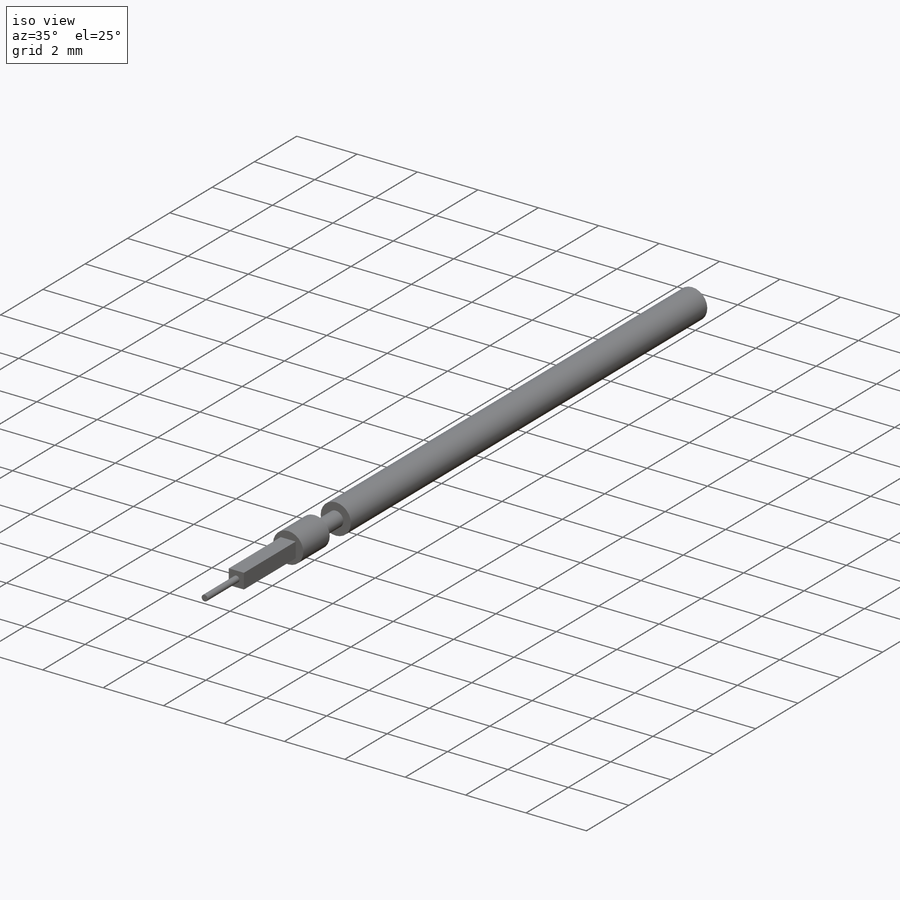
[diagram: iso view]
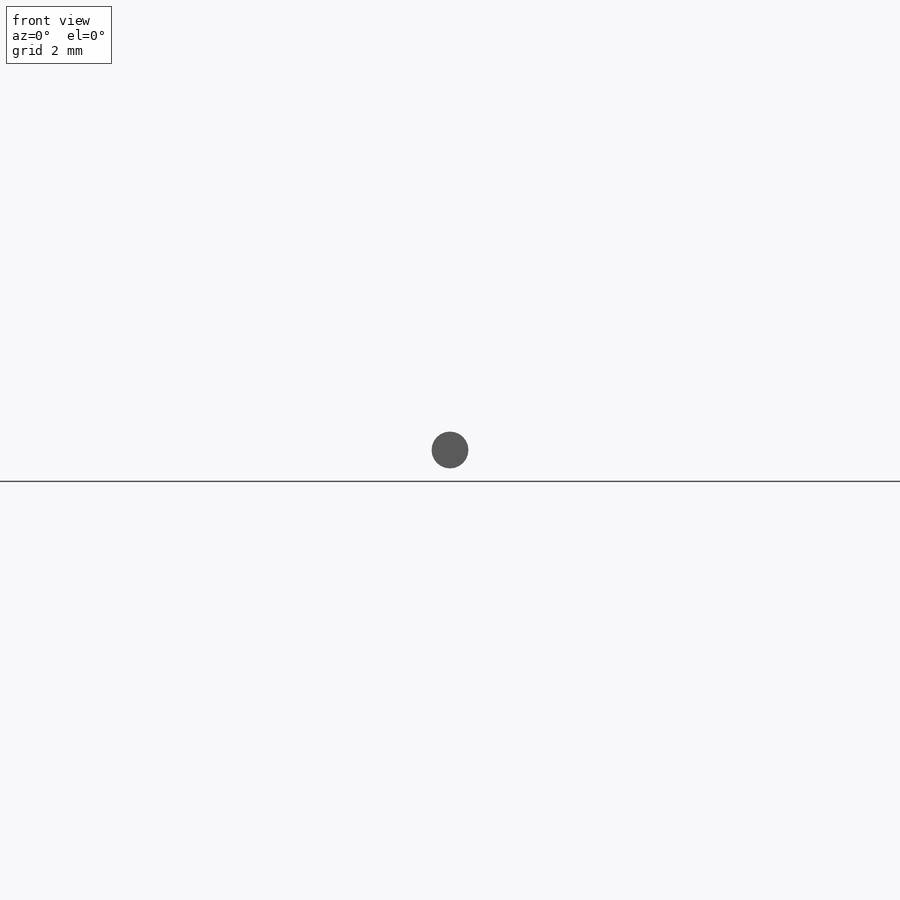
[diagram: front view]
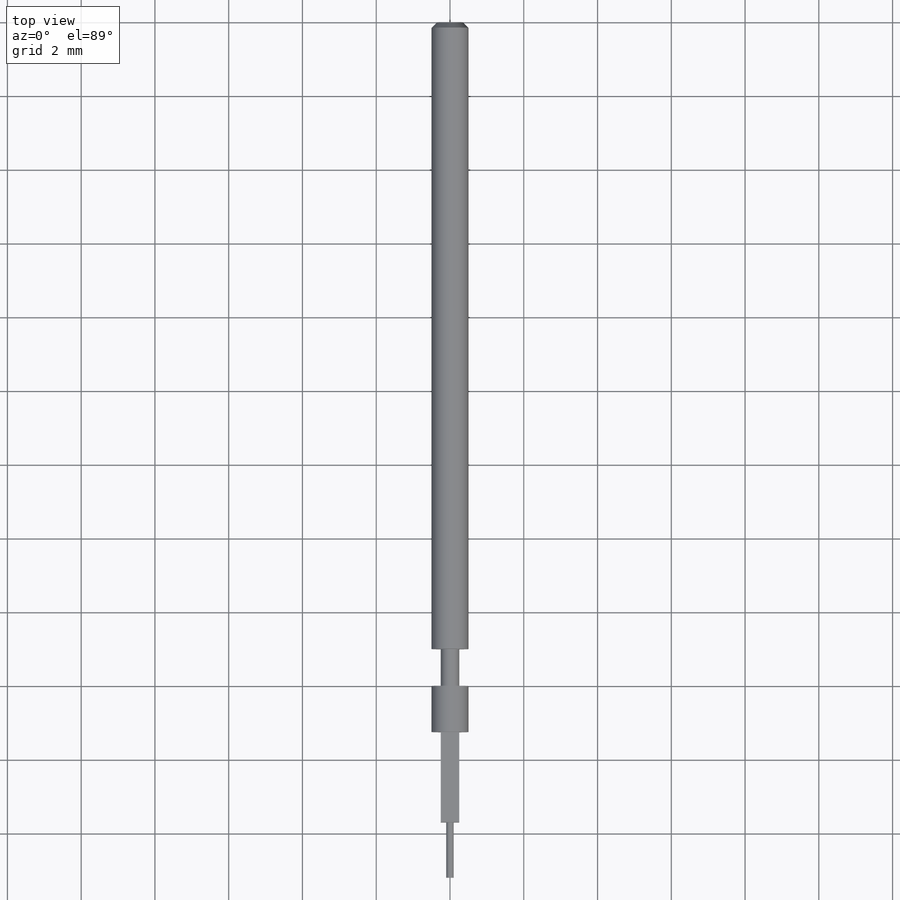
[diagram: top view]
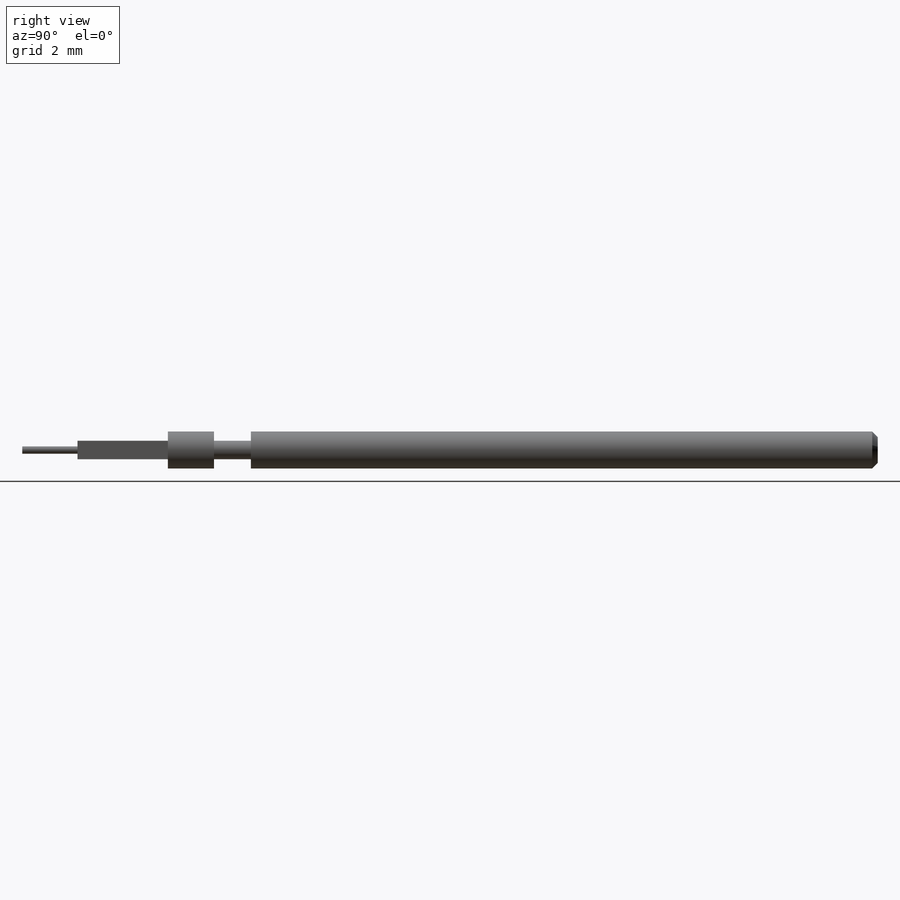
[diagram: right view]
SOLIDWORKS PART (.sldprt)
format: sldprt  version: not decoded by parser v0  size: 219,648 bytes
history: native  units: mm
features: sketch x5, extrude x5, plane x3, material x1, thread x1, chamfer x1 (+8 scaffold rows collapsed)
feature tree (24):
  scaffold x8  (default folders/planes/origin — collapsed)
  material  "Material <sin especificar>"
  plane  "Alzado"
  plane  "Planta"
  plane  "Vista lateral"
  sketch  "Croquis1"  dims[D1=1.0mm]
  extrude  "Saliente-Extruir1"  [1 undecoded]
  thread  "Rosca cosmética1"  Diameter=1.85mm  [1 undecoded]
  chamfer  "Chaflán1"  Distance=0.15mm Angle=45deg
  sketch  "Croquis6"  dims[D1=0.5mm]
  extrude  "Saliente-Extruir2"  Depth=1mm
  sketch  "Croquis7"  dims[D1=1.0mm]
  extrude  "Saliente-Extruir3"  Depth=1.25mm
  sketch  "Croquis8"  dims[D1=0.5mm]
  extrude  "Saliente-Extruir4"  Depth=2.45mm
  sketch  "Croquis9"  dims[D1=0.2mm]
  extrude  "Saliente-Extruir5"  Depth=1.5mm
decode coverage: 11 of 12 modeling features carry decoded parameters
note: 2 parameter values undecoded
note: suppression state not decoded; provenance and decode notes live in map.json
